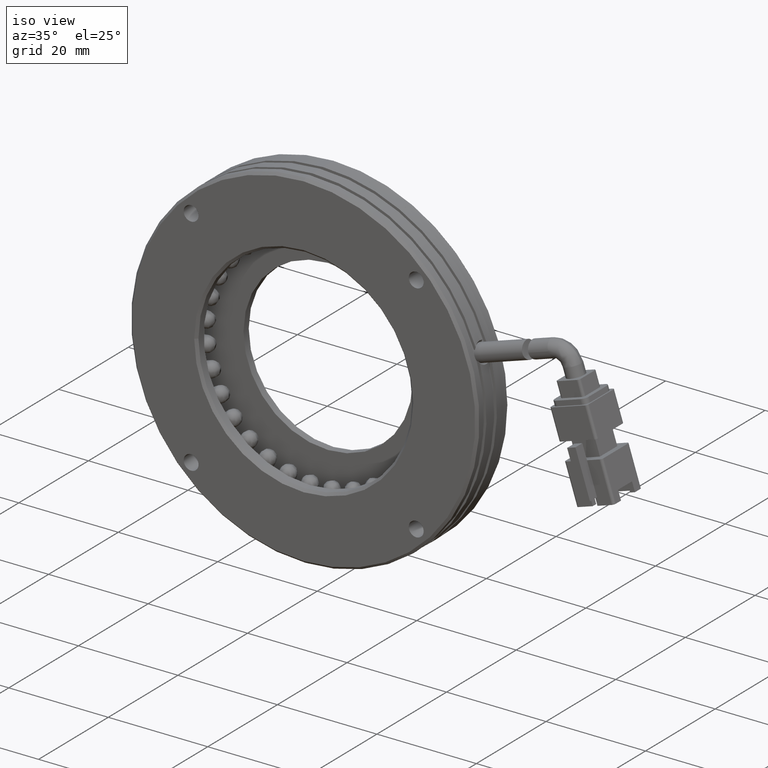
[diagram: clean part render]
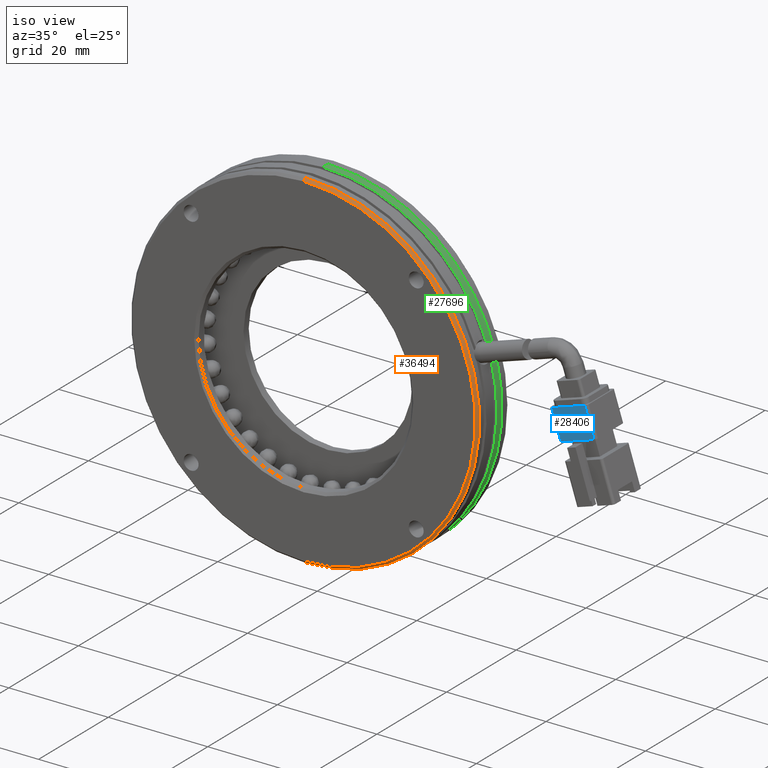
[diagram: same view with three faces highlighted in distinct colors, each labeled with its STEP entity id]
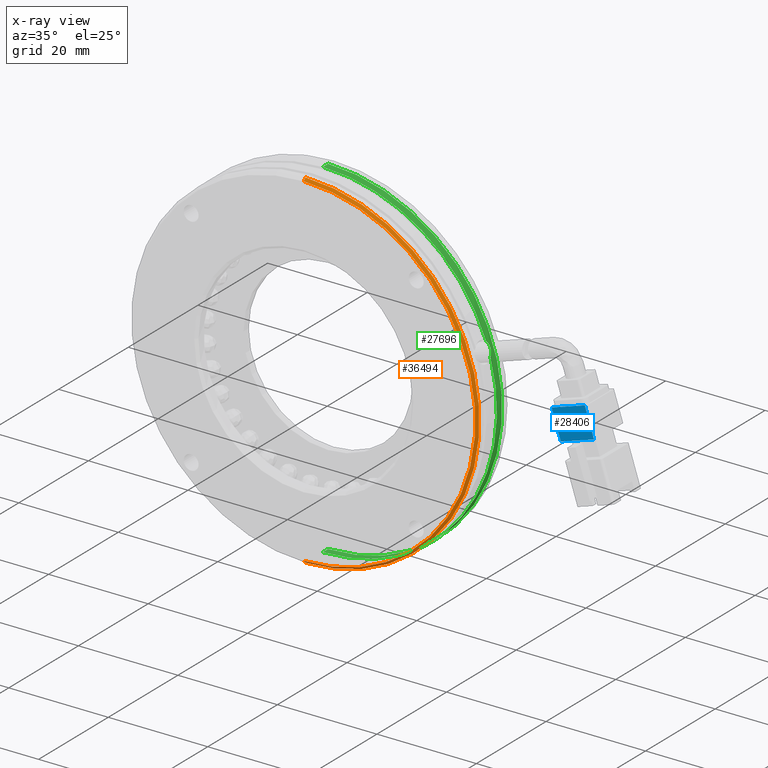
[diagram: x-ray of the same camera — body ghosted, the three highlighted faces saturated]
A machine part, iso view with three faces highlighted in distinct colors.
The next image is the same camera in x-ray (body ghosted, the three faces saturated) — at least one of them is partly hidden behind the body in this view.
Their STEP definitions:

[orange] entity #36494 — the highlighted conical surface has half-angle 45 deg.
#54 = DIRECTION ( 'NONE',  ( -0.0000000000000000000, 1.000000000000000000, 0.0000000000000000000 ) ) ;
#858 = FACE_OUTER_BOUND ( 'NONE', #10731, .T. ) ;
#1863 = ORIENTED_EDGE ( 'NONE', *, *, #35536, .T. ) ;
#2223 = CARTESIAN_POINT ( 'NONE',  ( -5.709292144904560800, 4.260202915404256900, -34.50000000000004300 ) ) ;
#3281 = ORIENTED_EDGE ( 'NONE', *, *, #18396, .F. ) ;
#3299 = DIRECTION ( 'NONE',  ( 0.0000000000000000000, 0.0000000000000000000, 1.000000000000000000 ) ) ;
#5215 = CONICAL_SURFACE ( 'NONE', #39060, 35.00000000000000000, 0.7853981633974482800 ) ;
#5287 = DIRECTION ( 'NONE',  ( -0.0000000000000000000, 1.000000000000000000, 0.0000000000000000000 ) ) ;
#5585 = CARTESIAN_POINT ( 'NONE',  ( -5.709292144904565300, 4.760202915404216000, 35.00000000000000000 ) ) ;
#5984 = CARTESIAN_POINT ( 'NONE',  ( -5.709292144904565300, 4.260202915404256900, 34.50000000000004300 ) ) ;
#6266 = CARTESIAN_POINT ( 'NONE',  ( -5.709292144904565300, 4.760202915404216000, 0.0000000000000000000 ) ) ;
#6502 = DIRECTION ( 'NONE',  ( 8.659560562354931600E-017, 0.7071067811865475700, -0.7071067811865474600 ) ) ;
#6766 = CIRCLE ( 'NONE', #37267, 34.50000000000004300 ) ;
#7348 = ORIENTED_EDGE ( 'NONE', *, *, #7381, .T. ) ;
#7381 = EDGE_CURVE ( 'NONE', #24899, #36297, #6766, .T. ) ;
#10086 = CARTESIAN_POINT ( 'NONE',  ( -5.709292144904565300, 4.760202915404216000, 0.0000000000000000000 ) ) ;
#10731 = EDGE_LOOP ( 'NONE', ( #7348, #1863, #15586, #3281 ) ) ;
#11811 = AXIS2_PLACEMENT_3D ( 'NONE', #10086, #31937, #13172 ) ;
#12089 = LINE ( 'NONE', #12653, #19366 ) ;
#12653 = CARTESIAN_POINT ( 'NONE',  ( -5.709292144904560800, 4.760202915404216000, -35.00000000000000000 ) ) ;
#13172 = DIRECTION ( 'NONE',  ( 0.0000000000000000000, 0.0000000000000000000, 1.000000000000000000 ) ) ;
#14941 = VERTEX_POINT ( 'NONE', #33655 ) ;
#15586 = ORIENTED_EDGE ( 'NONE', *, *, #31719, .T. ) ;
#16388 = VERTEX_POINT ( 'NONE', #26531 ) ;
#17662 = CIRCLE ( 'NONE', #11811, 34.99999999999999300 ) ;
#18396 = EDGE_CURVE ( 'NONE', #24899, #14941, #30225, .T. ) ;
#19366 = VECTOR ( 'NONE', #6502, 1000.000000000000000 ) ;
#23839 = CARTESIAN_POINT ( 'NONE',  ( -5.709292144904565300, 4.260202915404256900, 0.0000000000000000000 ) ) ;
#24899 = VERTEX_POINT ( 'NONE', #5984 ) ;
#26531 = CARTESIAN_POINT ( 'NONE',  ( -5.709292144904565300, 4.760202915404216000, -34.99999999999999300 ) ) ;
#27004 = DIRECTION ( 'NONE',  ( 0.0000000000000000000, 0.0000000000000000000, 1.000000000000000000 ) ) ;
#29233 = VECTOR ( 'NONE', #39815, 1000.000000000000000 ) ;
#30225 = LINE ( 'NONE', #5585, #29233 ) ;
#31719 = EDGE_CURVE ( 'NONE', #16388, #14941, #17662, .T. ) ;
#31937 = DIRECTION ( 'NONE',  ( -0.0000000000000000000, -1.000000000000000000, -0.0000000000000000000 ) ) ;
#33655 = CARTESIAN_POINT ( 'NONE',  ( -5.709292144904560800, 4.760202915404216000, 34.99999999999999300 ) ) ;
#35536 = EDGE_CURVE ( 'NONE', #36297, #16388, #12089, .T. ) ;
#36297 = VERTEX_POINT ( 'NONE', #2223 ) ;
#36494 = ADVANCED_FACE ( 'NONE', ( #858 ), #5215, .T. ) ;
#37267 = AXIS2_PLACEMENT_3D ( 'NONE', #23839, #5287, #27004 ) ;
#39060 = AXIS2_PLACEMENT_3D ( 'NONE', #6266, #54, #3299 ) ;
#39815 = DIRECTION ( 'NONE',  ( 0.0000000000000000000, 0.7071067811865475700, 0.7071067811865474600 ) ) ;

[blue] entity #28406 — the highlighted planar face has unit normal (-0, 1, 0).
#355 = EDGE_CURVE ( 'NONE', #22714, #29070, #20835, .T. ) ;
#490 = CARTESIAN_POINT ( 'NONE',  ( 50.80655397514613700, 4.260202915404277300, 8.899951535528178000 ) ) ;
#2451 = EDGE_CURVE ( 'NONE', #3832, #22714, #13029, .T. ) ;
#3475 = CARTESIAN_POINT ( 'NONE',  ( 46.00326032732972000, 4.260202915404280000, 1.030493477132616600 ) ) ;
#3612 = DIRECTION ( 'NONE',  ( -0.9510565162951532000, -7.511771070445336200E-017, -0.3090169943749484500 ) ) ;
#3832 = VERTEX_POINT ( 'NONE', #490 ) ;
#4432 = VECTOR ( 'NONE', #3612, 1000.000000000000100 ) ;
#4704 = CARTESIAN_POINT ( 'NONE',  ( 52.66065594139582400, 4.260202915404280000, 3.193612437757259700 ) ) ;
#5038 = EDGE_LOOP ( 'NONE', ( #33869, #19102, #39137, #10776 ) ) ;
#6153 = CARTESIAN_POINT ( 'NONE',  ( 50.80655397514613000, 4.260202915404277300, 8.899951535528183300 ) ) ;
#6276 = DIRECTION ( 'NONE',  ( 0.9510565162951532000, 1.502354214089062300E-016, 0.3090169943749484500 ) ) ;
#6883 = CARTESIAN_POINT ( 'NONE',  ( 44.14915836108004000, 4.260202915404276400, 6.736832574903539600 ) ) ;
#8123 = DIRECTION ( 'NONE',  ( 0.3090169943749484500, 2.194415329909673200E-016, -0.9510565162951532000 ) ) ;
#8910 = CARTESIAN_POINT ( 'NONE',  ( 50.80655397514613700, 4.260202915404277300, 8.899951535528163800 ) ) ;
#10776 = ORIENTED_EDGE ( 'NONE', *, *, #355, .F. ) ;
#12235 = CARTESIAN_POINT ( 'NONE',  ( 50.80655397514613700, 4.260202915404277300, 8.899951535528163800 ) ) ;
#12597 = CARTESIAN_POINT ( 'NONE',  ( 46.00326032732973400, 4.260202915404280000, 1.030493477132614900 ) ) ;
#13029 = LINE ( 'NONE', #8910, #33091 ) ;
#14585 = FACE_OUTER_BOUND ( 'NONE', #5038, .T. ) ;
#14795 = AXIS2_PLACEMENT_3D ( 'NONE', #12235, #34089, #15359 ) ;
#15227 = PLANE ( 'NONE',  #14795 ) ;
#15359 = DIRECTION ( 'NONE',  ( 0.3090169943749484500, 2.194415329909673200E-016, -0.9510565162951532000 ) ) ;
#18508 = VECTOR ( 'NONE', #37014, 1000.000000000000100 ) ;
#19102 = ORIENTED_EDGE ( 'NONE', *, *, #34857, .F. ) ;
#20835 = LINE ( 'NONE', #3475, #4432 ) ;
#21441 = CARTESIAN_POINT ( 'NONE',  ( 44.14915836108003300, 4.260202915404276400, 6.736832574903515600 ) ) ;
#21876 = VECTOR ( 'NONE', #6276, 1000.000000000000100 ) ;
#22714 = VERTEX_POINT ( 'NONE', #4704 ) ;
#23590 = EDGE_CURVE ( 'NONE', #29070, #37249, #35141, .T. ) ;
#28406 = ADVANCED_FACE ( 'NONE', ( #14585 ), #15227, .F. ) ;
#29070 = VERTEX_POINT ( 'NONE', #12597 ) ;
#30248 = LINE ( 'NONE', #6153, #21876 ) ;
#33091 = VECTOR ( 'NONE', #8123, 1000.000000000000100 ) ;
#33869 = ORIENTED_EDGE ( 'NONE', *, *, #2451, .F. ) ;
#34089 = DIRECTION ( 'NONE',  ( -2.106935394751884700E-016, 1.000000000000000000, 1.622760015244233400E-016 ) ) ;
#34857 = EDGE_CURVE ( 'NONE', #37249, #3832, #30248, .T. ) ;
#35141 = LINE ( 'NONE', #21441, #18508 ) ;
#37014 = DIRECTION ( 'NONE',  ( -0.3090169943749484500, -2.194415329909673200E-016, 0.9510565162951532000 ) ) ;
#37249 = VERTEX_POINT ( 'NONE', #6883 ) ;
#39137 = ORIENTED_EDGE ( 'NONE', *, *, #23590, .F. ) ;

[green] entity #27696 — the highlighted cylindrical surface (partial cylindrical patch) has radius 35 mm, axis along (-0, -1, -0).
#1751 = B_SPLINE_CURVE_WITH_KNOTS ( 'NONE', 3,
 ( #21075, #39795, #24247, #5696, #27407, #8778, #30593, #11848, #33713, #14966, #36810, #18109, #39918, #21203, #2719, #24391 ),
 .UNSPECIFIED., .F., .F.,
 ( 4, 2, 2, 2, 2, 2, 2, 4 ),
 ( 2.295029442671838400E-014, 0.0003927943289712862700, 0.0007855886579196222500, 0.001178382986867958400, 0.001571177315816294300, 0.001963971644764630300, 0.002356765973712966400, 0.003142354631609635700 ),
 .UNSPECIFIED. ) ;
#2076 = FACE_OUTER_BOUND ( 'NONE', #25153, .T. ) ;
#2529 = ORIENTED_EDGE ( 'NONE', *, *, #15043, .T. ) ;
#2719 = CARTESIAN_POINT ( 'NONE',  ( 27.94069384979346500, 9.942113895282473000, 9.628909944640048100 ) ) ;
#3496 = VERTEX_POINT ( 'NONE', #24328 ) ;
#5533 = EDGE_CURVE ( 'NONE', #15498, #3496, #1751, .T. ) ;
#5679 = ORIENTED_EDGE ( 'NONE', *, *, #14802, .T. ) ;
#5696 = CARTESIAN_POINT ( 'NONE',  ( 27.25099956043356600, 10.07174264512321200, 11.77418369459933700 ) ) ;
#6124 = CARTESIAN_POINT ( 'NONE',  ( -5.709292144904565300, -49.82318178258231000, 0.0000000000000000000 ) ) ;
#6437 = VECTOR ( 'NONE', #9524, 1000.000000000000000 ) ;
#8511 = CARTESIAN_POINT ( 'NONE',  ( -5.709292144904565300, 9.760203051484200600, 0.0000000000000000000 ) ) ;
#8778 = CARTESIAN_POINT ( 'NONE',  ( 27.37172053372746900, 10.22914486065099200, 11.43073357182158000 ) ) ;
#9454 = CARTESIAN_POINT ( 'NONE',  ( -5.709292144904565300, 11.26020291540426400, -34.99999999999999300 ) ) ;
#9524 = DIRECTION ( 'NONE',  ( -0.0000000000000000000, -1.000000000000000000, -0.0000000000000000000 ) ) ;
#10019 = VERTEX_POINT ( 'NONE', #18272 ) ;
#10727 = VECTOR ( 'NONE', #18956, 1000.000000000000000 ) ;
#11553 = DIRECTION ( 'NONE',  ( 8.921435019309294500E-016, 0.0000000000000000000, -1.000000000000000000 ) ) ;
#11848 = CARTESIAN_POINT ( 'NONE',  ( 27.49502263226449000, 10.31478622001349200, 11.06752393860505800 ) ) ;
#12285 = DIRECTION ( 'NONE',  ( -0.0000000000000000000, -1.000000000000000000, -0.0000000000000000000 ) ) ;
#12607 = AXIS2_PLACEMENT_3D ( 'NONE', #31030, #12285, #34135 ) ;
#12771 = AXIS2_PLACEMENT_3D ( 'NONE', #8511, #30295, #11553 ) ;
#14802 = EDGE_CURVE ( 'NONE', #3496, #34638, #33766, .T. ) ;
#14966 = CARTESIAN_POINT ( 'NONE',  ( 27.61812761655228200, 10.32748825217634100, 10.69113461858528100 ) ) ;
#15043 = EDGE_CURVE ( 'NONE', #10019, #22823, #22901, .T. ) ;
#15088 = EDGE_CURVE ( 'NONE', #17276, #34638, #34643, .T. ) ;
#15498 = VERTEX_POINT ( 'NONE', #38415 ) ;
#17100 = CARTESIAN_POINT ( 'NONE',  ( -5.709292144904565300, 9.760203051484200600, 0.0000000000000000000 ) ) ;
#17276 = VERTEX_POINT ( 'NONE', #9454 ) ;
#17624 = CARTESIAN_POINT ( 'NONE',  ( -5.709292144904560800, 9.760203051484200600, 34.99999999999999300 ) ) ;
#18109 = CARTESIAN_POINT ( 'NONE',  ( 27.73487725590679200, 10.26637445364112400, 10.32008984190126300 ) ) ;
#18272 = CARTESIAN_POINT ( 'NONE',  ( -5.709292144904560800, 11.26020291540426400, 34.99999999999999300 ) ) ;
#18956 = DIRECTION ( 'NONE',  ( -0.0000000000000000000, -1.000000000000000000, -0.0000000000000000000 ) ) ;
#20197 = DIRECTION ( 'NONE',  ( 1.784287003861858900E-015, 0.0000000000000000000, -1.000000000000000000 ) ) ;
#21075 = CARTESIAN_POINT ( 'NONE',  ( 27.10654453412181300, 9.760202915404269300, 12.17049149001570300 ) ) ;
#21186 = AXIS2_PLACEMENT_3D ( 'NONE', #6124, #37104, #21659 ) ;
#21203 = CARTESIAN_POINT ( 'NONE',  ( 27.87782130107124000, 10.08503423874715600, 9.847094513103899200 ) ) ;
#21598 = EDGE_CURVE ( 'NONE', #22823, #15498, #22301, .T. ) ;
#21659 = DIRECTION ( 'NONE',  ( 0.0000000000000000000, 0.0000000000000000000, -1.000000000000000000 ) ) ;
#22301 = CIRCLE ( 'NONE', #12771, 34.99999999999999300 ) ;
#22823 = VERTEX_POINT ( 'NONE', #17624 ) ;
#22893 = CYLINDRICAL_SURFACE ( 'NONE', #21186, 34.99999999999999300 ) ;
#22901 = LINE ( 'NONE', #28161, #6437 ) ;
#23218 = AXIS2_PLACEMENT_3D ( 'NONE', #17100, #38923, #20197 ) ;
#23624 = ORIENTED_EDGE ( 'NONE', *, *, #5533, .T. ) ;
#24247 = CARTESIAN_POINT ( 'NONE',  ( 27.17593349925271400, 9.931465530885661900, 11.98224375098466700 ) ) ;
#24328 = CARTESIAN_POINT ( 'NONE',  ( 27.99291285398263800, 9.760202904002701600, 9.442530365994159100 ) ) ;
#24391 = CARTESIAN_POINT ( 'NONE',  ( 27.99291285398263800, 9.760202904002701600, 9.442530365994159100 ) ) ;
#25153 = EDGE_LOOP ( 'NONE', ( #40036, #2529, #37761, #23624, #5679, #32839 ) ) ;
#27407 = CARTESIAN_POINT ( 'NONE',  ( 27.29072313717613300, 10.13214592575878800, 11.66250664378043400 ) ) ;
#27696 = ADVANCED_FACE ( 'NONE', ( #2076 ), #22893, .T. ) ;
#28161 = CARTESIAN_POINT ( 'NONE',  ( -5.709292144904560800, -49.82318178258231000, 34.99999999999999300 ) ) ;
#30295 = DIRECTION ( 'NONE',  ( 0.0000000000000000000, 1.000000000000000000, 0.0000000000000000000 ) ) ;
#30593 = CARTESIAN_POINT ( 'NONE',  ( 27.41262601507294100, 10.26557420680724100, 11.31172592298254600 ) ) ;
#31030 = CARTESIAN_POINT ( 'NONE',  ( -5.709292144904565300, 11.26020291540426400, 0.0000000000000000000 ) ) ;
#32839 = ORIENTED_EDGE ( 'NONE', *, *, #15088, .F. ) ;
#33713 = CARTESIAN_POINT ( 'NONE',  ( 27.53691073628320000, 10.32741984683535500, 10.94108136209393200 ) ) ;
#33766 = CIRCLE ( 'NONE', #23218, 34.99999999999999300 ) ;
#34135 = DIRECTION ( 'NONE',  ( 0.0000000000000000000, 0.0000000000000000000, -1.000000000000000000 ) ) ;
#34638 = VERTEX_POINT ( 'NONE', #39179 ) ;
#34643 = LINE ( 'NONE', #37679, #10727 ) ;
#35144 = CIRCLE ( 'NONE', #12607, 34.99999999999999300 ) ;
#36810 = CARTESIAN_POINT ( 'NONE',  ( 27.65770825690238200, 10.31530666569999800, 10.56692980202366000 ) ) ;
#37104 = DIRECTION ( 'NONE',  ( -0.0000000000000000000, -1.000000000000000000, -0.0000000000000000000 ) ) ;
#37679 = CARTESIAN_POINT ( 'NONE',  ( -5.709292144904565300, -49.82318178258231000, -34.99999999999999300 ) ) ;
#37761 = ORIENTED_EDGE ( 'NONE', *, *, #21598, .T. ) ;
#38415 = CARTESIAN_POINT ( 'NONE',  ( 27.10654453412181300, 9.760202915404269300, 12.17049149001570300 ) ) ;
#38923 = DIRECTION ( 'NONE',  ( 0.0000000000000000000, 1.000000000000000000, 0.0000000000000000000 ) ) ;
#39179 = CARTESIAN_POINT ( 'NONE',  ( -5.709292144904565300, 9.760203051484200600, -34.99999999999999300 ) ) ;
#39795 = CARTESIAN_POINT ( 'NONE',  ( 27.14019802776125800, 9.851160982498171800, 12.07975007842316700 ) ) ;
#39918 = CARTESIAN_POINT ( 'NONE',  ( 27.77247428509541600, 10.22924908045466300, 10.19736150789204400 ) ) ;
#40036 = ORIENTED_EDGE ( 'NONE', *, *, #40058, .T. ) ;
#40058 = EDGE_CURVE ( 'NONE', #17276, #10019, #35144, .T. ) ;